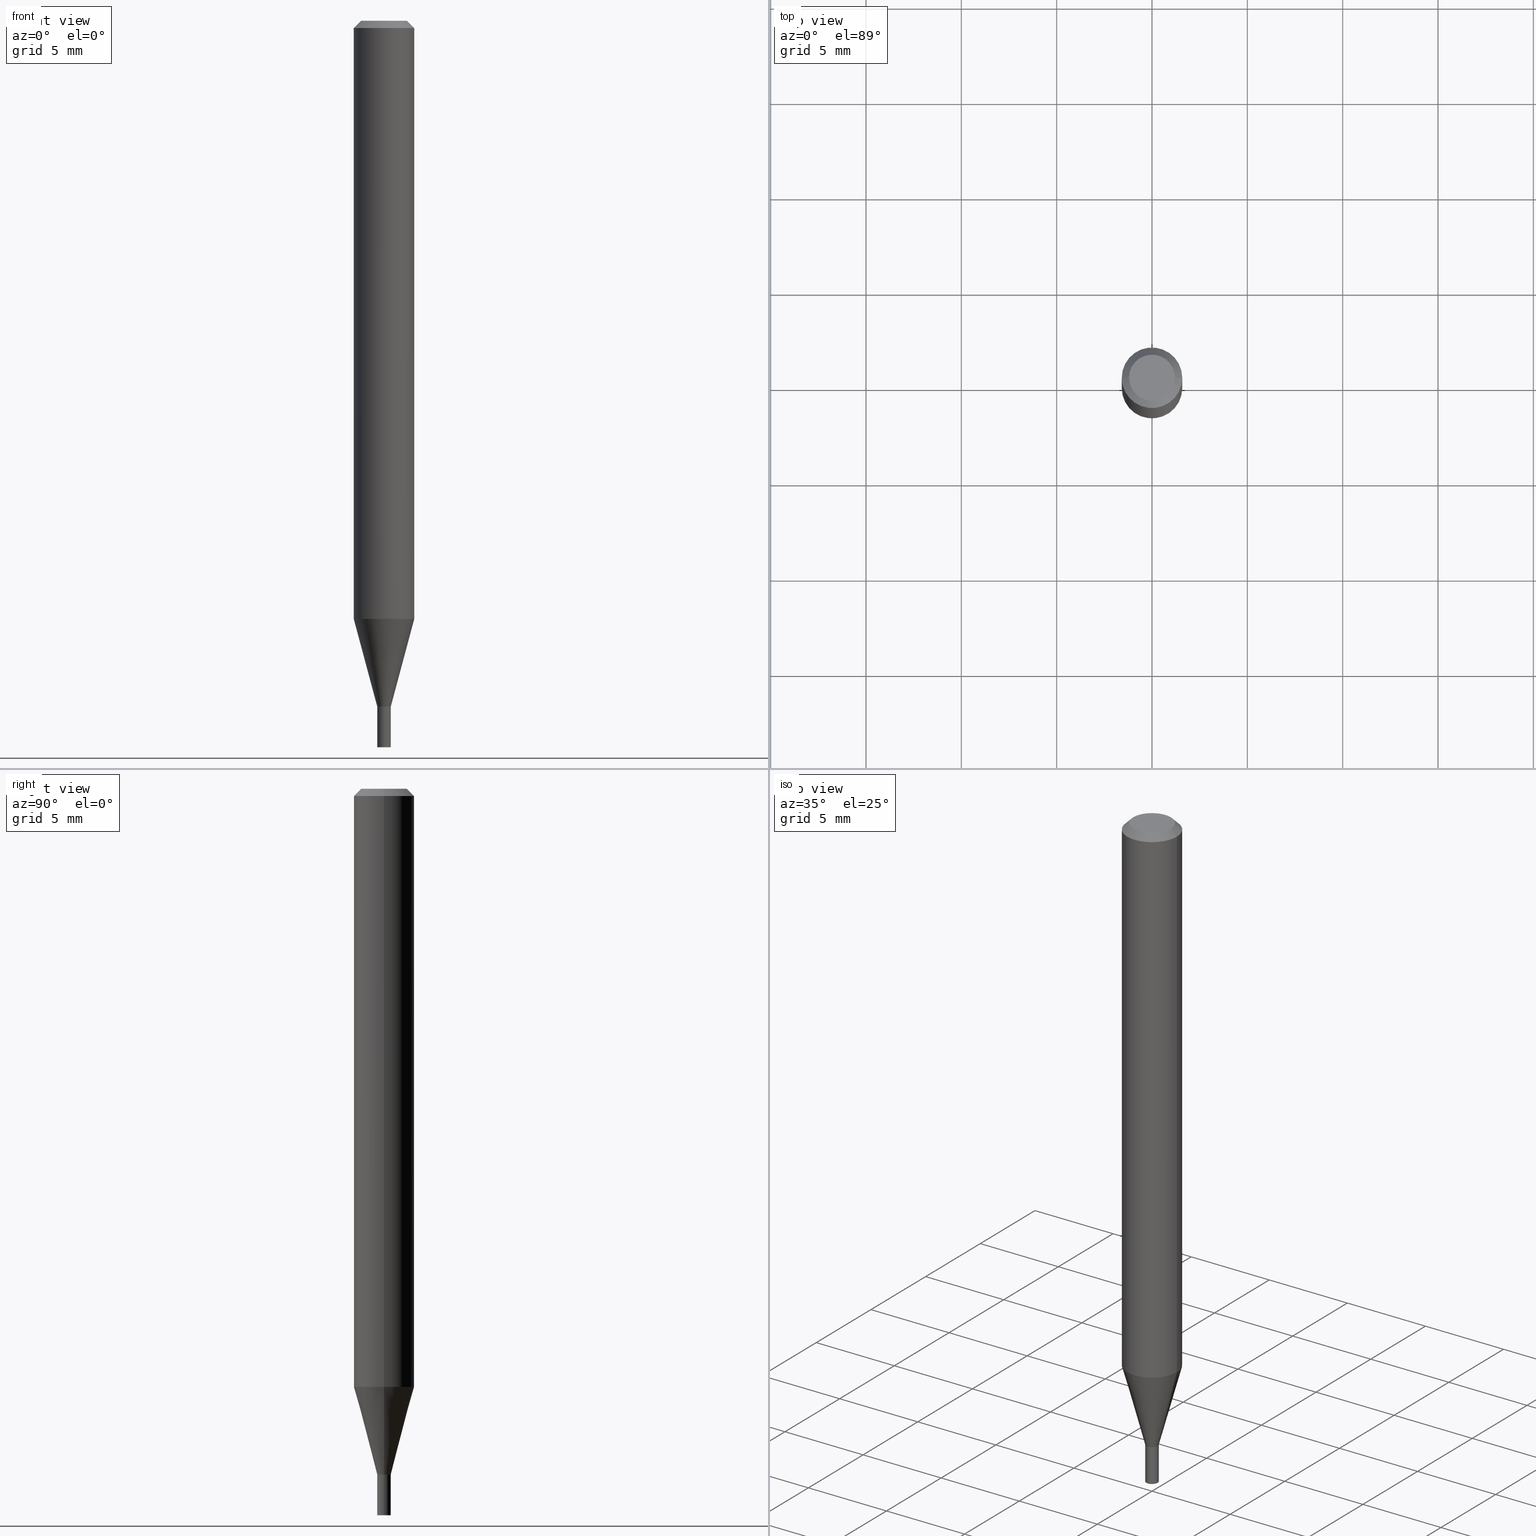
[diagram: canonical four-view strip — front | top / right | iso, engineering-drawing reading convention]
A machine part, canonical four-view strip (front | top / right | iso — engineering-drawing reading convention). The complete STEP part file that produces these views, byte-faithful:
ISO-10303-21;
HEADER;
FILE_DESCRIPTION (( 'STEP AP203' ),
    '1' );
FILE_NAME ('04134.STEP',
    '2024-03-14T17:04:21',
    ( '' ),
    ( '' ),
    'SwSTEP 2.0',
    'SolidWorks 2023',
    '' );
FILE_SCHEMA (( 'CONFIG_CONTROL_DESIGN' ));
ENDSEC;

DATA;
#1 = ORIENTED_EDGE ( 'NONE', *, *, #387, .T. ) ;
#2 = ORIENTED_EDGE ( 'NONE', *, *, #374, .T. ) ;
#3 = VERTEX_POINT ( 'NONE', #224 ) ;
#4 = LOCAL_TIME ( 13, 4, 21.00000000000000000, #462 ) ;
#5 = CALENDAR_DATE ( 2024, 14, 3 ) ;
#6 = ORIENTED_EDGE ( 'NONE', *, *, #285, .T. ) ;
#7 = CALENDAR_DATE ( 2024, 14, 3 ) ;
#8 = VERTEX_POINT ( 'NONE', #116 ) ;
#9 = CARTESIAN_POINT ( 'NONE',  ( 3.462783829558153484E-29, -4.943937575801893744E-15, -1.415999999999999925 ) ) ;
#10 = AXIS2_PLACEMENT_3D ( 'NONE', #459, #130, #163 ) ;
#11 = APPROVAL_PERSON_ORGANIZATION ( #352, #45, #276 ) ;
#12 = CARTESIAN_POINT ( 'NONE',  ( 0.000000000000000000, 0.000000000000000000, 0.000000000000000000 ) ) ;
#13 = EDGE_LOOP ( 'NONE', ( #422, #400, #143, #165 ) ) ;
#14 = CARTESIAN_POINT ( 'NONE',  ( -0.01399999999999965161, -4.842715852126062071E-15, -1.415500000000000203 ) ) ;
#15 = DIRECTION ( 'NONE',  ( -2.445468806185136597E-29, 3.491481338843145583E-15, 1.000000000000000000 ) ) ;
#16 = DIRECTION ( 'NONE',  ( 1.000000000000000000, -6.982962677686298265E-15, 0.000000000000000000 ) ) ;
#17 = AXIS2_PLACEMENT_3D ( 'NONE', #23, #203, #351 ) ;
#18 = CARTESIAN_POINT ( 'NONE',  ( 3.668203209277705088E-31, -5.237222008264718399E-17, -0.01499999999999999944 ) ) ;
#19 = VECTOR ( 'NONE', #91, 39.37007874015748143 ) ;
#20 = AXIS2_PLACEMENT_3D ( 'NONE', #417, #347, #450 ) ;
#21 = CARTESIAN_POINT ( 'NONE',  ( 3.668203209277705088E-31, -5.237222008264718399E-17, -0.01499999999999999944 ) ) ;
#22 = EDGE_CURVE ( 'NONE', #137, #153, #423, .T. ) ;
#23 = CARTESIAN_POINT ( 'NONE',  ( 3.462783829558153484E-29, -4.943937575801893744E-15, -1.415999999999999925 ) ) ;
#24 = ORIENTED_EDGE ( 'NONE', *, *, #26, .F. ) ;
#25 = DIRECTION ( 'NONE',  ( -0.2588190451025214611, 5.211531920934551042E-15, 0.9659258262890682012 ) ) ;
#26 = EDGE_CURVE ( 'NONE', #209, #8, #296, .T. ) ;
#27 = PRODUCT_DEFINITION_SHAPE ( 'NONE', 'NONE',  #438 ) ;
#28 = ORIENTED_EDGE ( 'NONE', *, *, #445, .F. ) ;
#29 = CARTESIAN_POINT ( 'NONE',  ( -0.04749999999999999362, 3.578768372314205575E-16, -2.863788329398987133E-16 ) ) ;
#30 = CARTESIAN_POINT ( 'NONE',  ( 0.000000000000000000, 0.000000000000000000, 0.000000000000000000 ) ) ;
#31 = DIRECTION ( 'NONE',  ( -2.445468806185136597E-29, 3.491481338843145583E-15, 1.000000000000000000 ) ) ;
#32 = AXIS2_PLACEMENT_3D ( 'NONE', #151, #253, #441 ) ;
#33 = DATE_AND_TIME ( #103, #377 ) ;
#34 =( GEOMETRIC_REPRESENTATION_CONTEXT ( 3 ) GLOBAL_UNCERTAINTY_ASSIGNED_CONTEXT ( ( #414 ) ) GLOBAL_UNIT_ASSIGNED_CONTEXT ( ( #95, #368, #278 ) ) REPRESENTATION_CONTEXT ( 'NONE', 'WORKASPACE' ) );
#35 = DIRECTION ( 'NONE',  ( 1.000000000000000000, -6.982962677686262766E-15, 0.000000000000000000 ) ) ;
#36 = DATE_AND_TIME ( #388, #183 ) ;
#37 = DIRECTION ( 'NONE',  ( 1.000000000000000000, -6.982962677686299054E-15, 0.000000000000000000 ) ) ;
#38 = EDGE_LOOP ( 'NONE', ( #393, #207, #84, #289 ) ) ;
#39 = APPLICATION_PROTOCOL_DEFINITION ( 'international standard', 'config_control_design', 1994, #275 ) ;
#40 = EDGE_LOOP ( 'NONE', ( #152, #216, #73, #323 ) ) ;
#41 = VECTOR ( 'NONE', #25, 39.37007874015747433 ) ;
#42 = FACE_OUTER_BOUND ( 'NONE', #345, .T. ) ;
#43 = EDGE_CURVE ( 'NONE', #251, #426, #161, .T. ) ;
#44 = VERTEX_POINT ( 'NONE', #440 ) ;
#45 = APPROVAL ( #49, 'UNSPECIFIED' ) ;
#46 = APPLICATION_CONTEXT ( 'configuration controlled 3d designs of mechanical parts and assemblies' ) ;
#47 = CARTESIAN_POINT ( 'NONE',  ( 0.000000000000000000, 0.000000000000000000, 0.000000000000000000 ) ) ;
#48 = ORIENTED_EDGE ( 'NONE', *, *, #265, .F. ) ;
#49 = APPROVAL_STATUS ( 'not_yet_approved' ) ;
#50 = ORIENTED_EDGE ( 'NONE', *, *, #394, .T. ) ;
#51 = CC_DESIGN_PERSON_AND_ORGANIZATION_ASSIGNMENT ( #166, #319, ( #438 ) ) ;
#52 = CARTESIAN_POINT ( 'NONE',  ( 0.01399999999999965335, -9.776147748760530919E-17, 6.826647486114140798E-31 ) ) ;
#53 = ADVANCED_FACE ( 'NONE', ( #54 ), #407, .T. ) ;
#54 = FACE_OUTER_BOUND ( 'NONE', #94, .T. ) ;
#55 = DIRECTION ( 'NONE',  ( 2.438088387897960049E-29, -3.491481338843145188E-15, -1.000000000000000000 ) ) ;
#56 = AXIS2_PLACEMENT_3D ( 'NONE', #159, #267, #232 ) ;
#57 = EDGE_CURVE ( 'NONE', #245, #426, #119, .T. ) ;
#58 = FACE_OUTER_BOUND ( 'NONE', #354, .T. ) ;
#59 = CARTESIAN_POINT ( 'NONE',  ( -0.06250000000000000000, -1.738078833648857034E-15, -0.01499999999999999944 ) ) ;
#60 = CARTESIAN_POINT ( 'NONE',  ( 0.06250000000000000000, -4.748399034270584284E-15, -1.234995535832908775 ) ) ;
#61 = FACE_OUTER_BOUND ( 'NONE', #174, .T. ) ;
#62 = LINE ( 'NONE', #378, #220 ) ;
#63 = VERTEX_POINT ( 'NONE', #373 ) ;
#64 = DIRECTION ( 'NONE',  ( -2.438088387897960049E-29, 3.491481338843145188E-15, 1.000000000000000000 ) ) ;
#65 = FACE_OUTER_BOUND ( 'NONE', #366, .T. ) ;
#66 = LINE ( 'NONE', #444, #262 ) ;
#67 = PERSON_AND_ORGANIZATION_ROLE ( 'creator' ) ;
#68 = DIRECTION ( 'NONE',  ( -1.000000000000000000, 6.982962677686266711E-15, 0.000000000000000000 ) ) ;
#69 = EDGE_CURVE ( 'NONE', #44, #8, #219, .T. ) ;
#70 = CONICAL_SURFACE ( 'NONE', #139, 0.01399999999999965335, 0.2617993877991501295 ) ;
#71 = APPROVAL_PERSON_ORGANIZATION ( #85, #316, #295 ) ;
#72 = DIRECTION ( 'NONE',  ( 0.2588190451025214611, 1.565188264969621573E-15, 0.9659258262890682012 ) ) ;
#73 = ORIENTED_EDGE ( 'NONE', *, *, #57, .T. ) ;
#74 = DATE_AND_TIME ( #7, #4 ) ;
#75 = LINE ( 'NONE', #210, #298 ) ;
#76 = ORIENTED_EDGE ( 'NONE', *, *, #451, .T. ) ;
#77 = CARTESIAN_POINT ( 'NONE',  ( -0.01350000000000000158, -4.848014306474279740E-15, -1.415999999999999925 ) ) ;
#78 = EDGE_CURVE ( 'NONE', #242, #44, #375, .T. ) ;
#79 = ORIENTED_EDGE ( 'NONE', *, *, #22, .F. ) ;
#80 = VECTOR ( 'NONE', #379, 39.37007874015748143 ) ;
#81 = LOCAL_TIME ( 13, 4, 21.00000000000000000, #282 ) ;
#82 = ORIENTED_EDGE ( 'NONE', *, *, #387, .F. ) ;
#83 = DIRECTION ( 'NONE',  ( 1.000000000000000000, 0.000000000000000000, 0.000000000000000000 ) ) ;
#84 = ORIENTED_EDGE ( 'NONE', *, *, #69, .F. ) ;
#85 = PERSON_AND_ORGANIZATION ( #206, #334 ) ;
#86 = DIRECTION ( 'NONE',  ( -2.445468806185136597E-29, 3.491481338843145583E-15, 1.000000000000000000 ) ) ;
#87 = CARTESIAN_POINT ( 'NONE',  ( 3.462783829558154044E-29, -4.943937575801894533E-15, -1.416000000000000147 ) ) ;
#88 = AXIS2_PLACEMENT_3D ( 'NONE', #442, #177, #300 ) ;
#89 = AXIS2_PLACEMENT_3D ( 'NONE', #199, #64, #448 ) ;
#90 = DIRECTION ( 'NONE',  ( -2.445468806185136597E-29, 3.491481338843145583E-15, 1.000000000000000000 ) ) ;
#91 = DIRECTION ( 'NONE',  ( -2.445468806185136877E-29, 3.491481338843145188E-15, 1.000000000000000000 ) ) ;
#92 = VERTEX_POINT ( 'NONE', #120 ) ;
#93 = VECTOR ( 'NONE', #360, 39.37007874015748143 ) ;
#94 = EDGE_LOOP ( 'NONE', ( #24, #308, #248, #185 ) ) ;
#95 =( CONVERSION_BASED_UNIT ( 'INCH', #121 ) LENGTH_UNIT ( ) NAMED_UNIT ( #315 ) );
#96 = DIRECTION ( 'NONE',  ( 0.7071067811865642261, -2.468850131082431399E-15, 0.7071067811865309194 ) ) ;
#97 = PLANE ( 'NONE',  #466 ) ;
#98 = AXIS2_PLACEMENT_3D ( 'NONE', #123, #266, #154 ) ;
#99 = CIRCLE ( 'NONE', #321, 0.06250000000000000000 ) ;
#100 = DIRECTION ( 'NONE',  ( -2.445468806185136877E-29, 3.491481338843145188E-15, 1.000000000000000000 ) ) ;
#101 = ORIENTED_EDGE ( 'NONE', *, *, #436, .F. ) ;
#102 = EDGE_LOOP ( 'NONE', ( #107, #397, #138, #101 ) ) ;
#103 = CALENDAR_DATE ( 2024, 14, 3 ) ;
#104 = ADVANCED_FACE ( 'NONE', ( #58 ), #222, .F. ) ;
#105 = CARTESIAN_POINT ( 'NONE',  ( -0.06250000000000000000, 4.440892098500626162E-16, -3.074334431409316114E-30 ) ) ;
#106 = CC_DESIGN_DATE_AND_TIME_ASSIGNMENT ( #201, #164, ( #398 ) ) ;
#107 = ORIENTED_EDGE ( 'NONE', *, *, #343, .F. ) ;
#108 = ORIENTED_EDGE ( 'NONE', *, *, #69, .T. ) ;
#109 = AXIS2_PLACEMENT_3D ( 'NONE', #184, #86, #369 ) ;
#110 = VERTEX_POINT ( 'NONE', #60 ) ;
#111 = PERSON_AND_ORGANIZATION_ROLE ( 'design_owner' ) ;
#112 = EDGE_CURVE ( 'NONE', #8, #44, #456, .T. ) ;
#113 = DIRECTION ( 'NONE',  ( 2.445468806185136597E-29, -3.491481338843145583E-15, -1.000000000000000000 ) ) ;
#114 = ORIENTED_EDGE ( 'NONE', *, *, #357, .T. ) ;
#115 = CIRCLE ( 'NONE', #376, 0.01399999999999965161 ) ;
#116 = CARTESIAN_POINT ( 'NONE',  ( -0.01400000000000000203, -4.991103809026892241E-15, -1.416000000000000147 ) ) ;
#117 = ADVANCED_FACE ( 'NONE', ( #189 ), #304, .T. ) ;
#118 = EDGE_CURVE ( 'NONE', #153, #137, #415, .T. ) ;
#119 = LINE ( 'NONE', #52, #257 ) ;
#120 = CARTESIAN_POINT ( 'NONE',  ( -0.01399999999999965335, -4.356168124930306786E-15, -1.416000000000000147 ) ) ;
#121 = LENGTH_MEASURE_WITH_UNIT ( LENGTH_MEASURE( 0.02539999999999999897 ), #457 );
#122 = FACE_OUTER_BOUND ( 'NONE', #40, .T. ) ;
#123 = CARTESIAN_POINT ( 'NONE',  ( 9.776147748764236100E-17, 0.01399999999999505806, -1.416000000000000147 ) ) ;
#124 = PLANE ( 'NONE',  #89 ) ;
#125 = PRODUCT ( '04134', '04134', '', ( #135 ) ) ;
#126 = CARTESIAN_POINT ( 'NONE',  ( 3.462783829558153484E-29, -4.943937575801893744E-15, -1.415999999999999925 ) ) ;
#127 = CONICAL_SURFACE ( 'NONE', #149, 0.06250000000000000000, 0.7853981633974579379 ) ;
#128 = CC_DESIGN_APPROVAL ( #45, ( #370 ) ) ;
#129 = DIRECTION ( 'NONE',  ( -2.445468806185136597E-29, 3.491481338843145583E-15, 1.000000000000000000 ) ) ;
#130 = DIRECTION ( 'NONE',  ( -2.445468806185136597E-29, 3.491481338843145583E-15, 1.000000000000000000 ) ) ;
#131 = CARTESIAN_POINT ( 'NONE',  ( 0.000000000000000000, 0.000000000000000000, 0.000000000000000000 ) ) ;
#132 = APPROVAL_DATE_TIME ( #36, #401 ) ;
#133 = AXIS2_PLACEMENT_3D ( 'NONE', #47, #208, #324 ) ;
#134 = ORIENTED_EDGE ( 'NONE', *, *, #118, .T. ) ;
#135 = MECHANICAL_CONTEXT ( 'NONE', #46, 'mechanical' ) ;
#136 = ORIENTED_EDGE ( 'NONE', *, *, #367, .T. ) ;
#137 = VERTEX_POINT ( 'NONE', #260 ) ;
#138 = ORIENTED_EDGE ( 'NONE', *, *, #213, .T. ) ;
#139 = AXIS2_PLACEMENT_3D ( 'NONE', #237, #386, #311 ) ;
#140 = VECTOR ( 'NONE', #100, 39.37007874015748143 ) ;
#141 = ADVANCED_FACE ( 'NONE', ( #294 ), #127, .T. ) ;
#142 = COORDINATED_UNIVERSAL_TIME_OFFSET ( 5, 0, .BEHIND. ) ;
#143 = ORIENTED_EDGE ( 'NONE', *, *, #425, .F. ) ;
#144 = DATE_TIME_ROLE ( 'creation_date' ) ;
#145 = DIRECTION ( 'NONE',  ( 1.000000000000000000, -6.982962677686296687E-15, 0.000000000000000000 ) ) ;
#146 = ADVANCED_FACE ( 'NONE', ( #122 ), #449, .F. ) ;
#147 = ADVANCED_FACE ( 'NONE', ( #65 ), #340, .T. ) ;
#148 = CARTESIAN_POINT ( 'NONE',  ( -0.01400000000000000203, 9.947598300641404042E-17, -6.886509126356868606E-31 ) ) ;
#149 = AXIS2_PLACEMENT_3D ( 'NONE', #435, #113, #68 ) ;
#150 = AXIS2_PLACEMENT_3D ( 'NONE', #346, #129, #16 ) ;
#151 = CARTESIAN_POINT ( 'NONE',  ( 3.462783829558154044E-29, -4.943937575801894533E-15, -1.416000000000000147 ) ) ;
#152 = ORIENTED_EDGE ( 'NONE', *, *, #367, .F. ) ;
#153 = VERTEX_POINT ( 'NONE', #198 ) ;
#154 = DIRECTION ( 'NONE',  ( -1.000000000000000000, 6.982962677686265922E-15, -4.876176775795935793E-29 ) ) ;
#155 = DIRECTION ( 'NONE',  ( -2.445468806185136597E-29, 3.491481338843145583E-15, 1.000000000000000000 ) ) ;
#156 = DIRECTION ( 'NONE',  ( 1.000000000000000000, -6.982962677686262766E-15, 0.000000000000000000 ) ) ;
#157 = CC_DESIGN_SECURITY_CLASSIFICATION ( #398, ( #370 ) ) ;
#158 = CARTESIAN_POINT ( 'NONE',  ( 3.020143058657276543E-29, -4.311963866915191826E-15, -1.234995535832908775 ) ) ;
#159 = CARTESIAN_POINT ( 'NONE',  ( 0.000000000000000000, 0.000000000000000000, 0.000000000000000000 ) ) ;
#160 = CARTESIAN_POINT ( 'NONE',  ( -0.01399999999999965335, 9.947598300641156290E-17, -6.886509126356697823E-31 ) ) ;
#161 = CIRCLE ( 'NONE', #88, 0.01399999999999965161 ) ;
#162 = VECTOR ( 'NONE', #341, 39.37007874015748143 ) ;
#163 = DIRECTION ( 'NONE',  ( 1.000000000000000000, -6.982962677686266711E-15, 4.876176775795935793E-29 ) ) ;
#164 = DATE_TIME_ROLE ( 'classification_date' ) ;
#165 = ORIENTED_EDGE ( 'NONE', *, *, #394, .F. ) ;
#166 = PERSON_AND_ORGANIZATION ( #206, #334 ) ;
#167 = AXIS2_PLACEMENT_3D ( 'NONE', #30, #458, #365 ) ;
#168 = AXIS2_PLACEMENT_3D ( 'NONE', #225, #233, #268 ) ;
#169 = ORIENTED_EDGE ( 'NONE', *, *, #277, .T. ) ;
#170 = DIRECTION ( 'NONE',  ( -0.7071067811865542341, 2.468850131082328058E-15, -0.7071067811865405783 ) ) ;
#171 = ORIENTED_EDGE ( 'NONE', *, *, #264, .F. ) ;
#172 = ORIENTED_EDGE ( 'NONE', *, *, #343, .T. ) ;
#173 = PERSON_AND_ORGANIZATION_ROLE ( 'design_supplier' ) ;
#174 = EDGE_LOOP ( 'NONE', ( #48, #28 ) ) ;
#175 = AXIS2_PLACEMENT_3D ( 'NONE', #336, #372, #403 ) ;
#176 = CIRCLE ( 'NONE', #432, 0.06250000000000000000 ) ;
#177 = DIRECTION ( 'NONE',  ( -2.445468806185136597E-29, 3.491481338843145583E-15, 1.000000000000000000 ) ) ;
#178 = ADVANCED_FACE ( 'NONE', ( #200 ), #182, .T. ) ;
#179 = EDGE_CURVE ( 'NONE', #433, #63, #202, .T. ) ;
#180 = CARTESIAN_POINT ( 'NONE',  ( 0.01400000000000000203, -9.776147748760774973E-17, 6.826647486114310706E-31 ) ) ;
#181 = DIRECTION ( 'NONE',  ( -2.445468806185136597E-29, 3.491481338843145583E-15, 1.000000000000000000 ) ) ;
#182 = CONICAL_SURFACE ( 'NONE', #226, 0.06250000000000000000, 0.7853981633974579379 ) ;
#183 = LOCAL_TIME ( 13, 4, 21.00000000000000000, #402 ) ;
#184 = CARTESIAN_POINT ( 'NONE',  ( 3.020143058657276543E-29, -4.311963866915191826E-15, -1.234995535832908775 ) ) ;
#185 = ORIENTED_EDGE ( 'NONE', *, *, #112, .F. ) ;
#186 = DIRECTION ( 'NONE',  ( -2.445468806185136597E-29, 3.491481338843145583E-15, 1.000000000000000000 ) ) ;
#187 = LINE ( 'NONE', #105, #361 ) ;
#188 = DESIGN_CONTEXT ( 'detailed design', #275, 'design' ) ;
#189 = FACE_OUTER_BOUND ( 'NONE', #409, .T. ) ;
#190 = ADVANCED_FACE ( 'NONE', ( #455 ), #272, .F. ) ;
#191 = DIRECTION ( 'NONE',  ( 0.7071067811865542341, -7.319954787623278133E-15, -0.7071067811865405783 ) ) ;
#192 = CIRCLE ( 'NONE', #32, 0.01399999999999965335 ) ;
#193 = APPROVAL_PERSON_ORGANIZATION ( #293, #401, #239 ) ;
#194 = DIRECTION ( 'NONE',  ( -1.000000000000000000, 6.982962677686266711E-15, 0.000000000000000000 ) ) ;
#195 = ORIENTED_EDGE ( 'NONE', *, *, #22, .T. ) ;
#196 = DIRECTION ( 'NONE',  ( -2.438088387897960049E-29, 3.491481338843145188E-15, 1.000000000000000000 ) ) ;
#197 = ADVANCED_FACE ( 'NONE', ( #389 ), #290, .T. ) ;
#198 = CARTESIAN_POINT ( 'NONE',  ( -0.01350000000000000158, -4.845365079300170905E-15, -1.415999999999999925 ) ) ;
#199 = CARTESIAN_POINT ( 'NONE',  ( 3.576687321579069994E-29, -5.368277968210015545E-15, -1.500000000000000222 ) ) ;
#200 = FACE_OUTER_BOUND ( 'NONE', #429, .T. ) ;
#201 = DATE_AND_TIME ( #5, #305 ) ;
#202 = CIRCLE ( 'NONE', #313, 0.06250000000000000000 ) ;
#203 = DIRECTION ( 'NONE',  ( -2.445468806185136597E-29, 3.491481338843145583E-15, 1.000000000000000000 ) ) ;
#204 = APPROVAL_STATUS ( 'not_yet_approved' ) ;
#205 = CARTESIAN_POINT ( 'NONE',  ( 3.461561095155061243E-29, -4.942191835132473030E-15, -1.415500000000000203 ) ) ;
#206 = PERSON ( 'UNSPECIFIED', 'UNSPECIFIED', 'UNSPECIFIED', ('UNSPECIFIED'), ('UNSPECIFIED'), ('UNSPECIFIED') ) ;
#207 = ORIENTED_EDGE ( 'NONE', *, *, #26, .T. ) ;
#208 = DIRECTION ( 'NONE',  ( -2.445468806185136597E-29, 3.491481338843145583E-15, 1.000000000000000000 ) ) ;
#209 = VERTEX_POINT ( 'NONE', #241 ) ;
#210 = CARTESIAN_POINT ( 'NONE',  ( -0.06250000000000000000, 3.840629472727444916E-16, -0.01499999999999999944 ) ) ;
#211 = AXIS2_PLACEMENT_3D ( 'NONE', #355, #349, #83 ) ;
#212 = ORIENTED_EDGE ( 'NONE', *, *, #451, .F. ) ;
#213 = EDGE_CURVE ( 'NONE', #245, #110, #392, .T. ) ;
#214 = ORIENTED_EDGE ( 'NONE', *, *, #43, .T. ) ;
#215 = PERSON_AND_ORGANIZATION ( #206, #334 ) ;
#216 = ORIENTED_EDGE ( 'NONE', *, *, #357, .F. ) ;
#217 = SHAPE_DEFINITION_REPRESENTATION ( #27, #404 ) ;
#218 = EDGE_LOOP ( 'NONE', ( #171, #318, #50, #328 ) ) ;
#219 = CIRCLE ( 'NONE', #431, 0.01400000000000000203 ) ;
#220 = VECTOR ( 'NONE', #96, 39.37007874015748143 ) ;
#221 = EDGE_CURVE ( 'NONE', #426, #251, #115, .T. ) ;
#222 = PLANE ( 'NONE',  #247 ) ;
#223 = CARTESIAN_POINT ( 'NONE',  ( 3.316907271900976096E-16, 0.04749999999999999362, -3.090347800649974958E-16 ) ) ;
#224 = CARTESIAN_POINT ( 'NONE',  ( -0.06250000000000000000, -3.867874657065129999E-15, -1.234995535832908775 ) ) ;
#225 = CARTESIAN_POINT ( 'NONE',  ( 3.462783829558154044E-29, -4.943937575801894533E-15, -1.416000000000000147 ) ) ;
#226 = AXIS2_PLACEMENT_3D ( 'NONE', #18, #383, #194 ) ;
#227 = EDGE_CURVE ( 'NONE', #92, #245, #192, .T. ) ;
#228 = DIRECTION ( 'NONE',  ( 1.000000000000000000, -6.982962677686296687E-15, 0.000000000000000000 ) ) ;
#229 = DIRECTION ( 'NONE',  ( -2.445468806185136597E-29, 3.491481338843145583E-15, 1.000000000000000000 ) ) ;
#230 = CC_DESIGN_DATE_AND_TIME_ASSIGNMENT ( #427, #144, ( #438 ) ) ;
#231 = DIRECTION ( 'NONE',  ( 1.000000000000000000, -6.982962677686262766E-15, 0.000000000000000000 ) ) ;
#232 = DIRECTION ( 'NONE',  ( 1.000000000000000000, -6.982962677686266711E-15, 4.876176775795935793E-29 ) ) ;
#233 = DIRECTION ( 'NONE',  ( -2.445468806185136597E-29, 3.491481338843145583E-15, 1.000000000000000000 ) ) ;
#234 = EDGE_CURVE ( 'NONE', #110, #3, #291, .T. ) ;
#235 = AXIS2_PLACEMENT_3D ( 'NONE', #302, #443, #145 ) ;
#236 = CIRCLE ( 'NONE', #168, 0.01399999999999965335 ) ;
#237 = CARTESIAN_POINT ( 'NONE',  ( 3.462783829558154044E-29, -4.943937575801894533E-15, -1.416000000000000147 ) ) ;
#238 = LINE ( 'NONE', #420, #41 ) ;
#239 = APPROVAL_ROLE ( '' ) ;
#240 = DIRECTION ( 'NONE',  ( 1.000000000000000000, -6.982962677686266711E-15, 4.876176775795935793E-29 ) ) ;
#241 = CARTESIAN_POINT ( 'NONE',  ( -0.01400000000000000203, -4.991103809026892241E-15, -1.500000000000000222 ) ) ;
#242 = VERTEX_POINT ( 'NONE', #255 ) ;
#243 = PERSON_AND_ORGANIZATION ( #206, #334 ) ;
#244 = EDGE_LOOP ( 'NONE', ( #395, #136, #214, #332 ) ) ;
#245 = VERTEX_POINT ( 'NONE', #350 ) ;
#246 = ADVANCED_FACE ( 'NONE', ( #381 ), #312, .T. ) ;
#247 = AXIS2_PLACEMENT_3D ( 'NONE', #223, #55, #437 ) ;
#248 = ORIENTED_EDGE ( 'NONE', *, *, #78, .T. ) ;
#249 = CC_DESIGN_PERSON_AND_ORGANIZATION_ASSIGNMENT ( #364, #173, ( #370 ) ) ;
#250 = COORDINATED_UNIVERSAL_TIME_OFFSET ( 5, 0, .BEHIND. ) ;
#251 = VERTEX_POINT ( 'NONE', #14 ) ;
#252 = CALENDAR_DATE ( 2024, 14, 3 ) ;
#253 = DIRECTION ( 'NONE',  ( -2.445468806185136597E-29, 3.491481338843145583E-15, 1.000000000000000000 ) ) ;
#254 = DIRECTION ( 'NONE',  ( 1.000000000000000000, -6.982962677686266711E-15, 4.876176775795935232E-29 ) ) ;
#255 = CARTESIAN_POINT ( 'NONE',  ( 0.01400000000000000203, -5.334983485752326321E-15, -1.500000000000000222 ) ) ;
#256 = ORIENTED_EDGE ( 'NONE', *, *, #213, .F. ) ;
#257 = VECTOR ( 'NONE', #408, 39.37007874015748143 ) ;
#258 = DIRECTION ( 'NONE',  ( -2.445468806185136597E-29, 3.491481338843145583E-15, 1.000000000000000000 ) ) ;
#259 = ORIENTED_EDGE ( 'NONE', *, *, #452, .F. ) ;
#260 = CARTESIAN_POINT ( 'NONE',  ( 0.01350000000000000158, -5.038207571950658881E-15, -1.415999999999999925 ) ) ;
#261 = PLANE ( 'NONE',  #98 ) ;
#262 = VECTOR ( 'NONE', #191, 39.37007874015748854 ) ;
#263 = FACE_OUTER_BOUND ( 'NONE', #284, .T. ) ;
#264 = EDGE_CURVE ( 'NONE', #3, #433, #187, .T. ) ;
#265 = EDGE_CURVE ( 'NONE', #242, #209, #279, .T. ) ;
#266 = DIRECTION ( 'NONE',  ( 2.438088387897960049E-29, -3.491481338843145188E-15, -1.000000000000000000 ) ) ;
#267 = DIRECTION ( 'NONE',  ( -2.445468806185136597E-29, 3.491481338843145583E-15, 1.000000000000000000 ) ) ;
#268 = DIRECTION ( 'NONE',  ( 1.000000000000000000, -6.982962677686298265E-15, 0.000000000000000000 ) ) ;
#269 = CYLINDRICAL_SURFACE ( 'NONE', #167, 0.06250000000000000000 ) ;
#270 = AXIS2_PLACEMENT_3D ( 'NONE', #9, #15, #371 ) ;
#271 = CIRCLE ( 'NONE', #299, 0.04749999999999999362 ) ;
#272 = CYLINDRICAL_SURFACE ( 'NONE', #439, 0.01399999999999965335 ) ;
#273 = LINE ( 'NONE', #385, #140 ) ;
#274 = DIRECTION ( 'NONE',  ( -2.445468806185136597E-29, 3.491481338843145583E-15, 1.000000000000000000 ) ) ;
#275 = APPLICATION_CONTEXT ( 'configuration controlled 3d designs of mechanical parts and assemblies' ) ;
#276 = APPROVAL_ROLE ( '' ) ;
#277 = EDGE_CURVE ( 'NONE', #464, #433, #75, .T. ) ;
#278 =( NAMED_UNIT ( * ) SI_UNIT ( $, .STERADIAN. ) SOLID_ANGLE_UNIT ( ) );
#279 = CIRCLE ( 'NONE', #446, 0.01400000000000000203 ) ;
#280 = CONICAL_SURFACE ( 'NONE', #150, 0.01399999999999965335, 0.2617993877991501295 ) ;
#281 = ORIENTED_EDGE ( 'NONE', *, *, #277, .F. ) ;
#282 = COORDINATED_UNIVERSAL_TIME_OFFSET ( 5, 0, .BEHIND. ) ;
#283 = MANIFOLD_SOLID_BREP ( 'Body-Move/Copy2[1]', #410 ) ;
#284 = EDGE_LOOP ( 'NONE', ( #79, #416 ) ) ;
#285 = EDGE_CURVE ( 'NONE', #153, #251, #396, .T. ) ;
#286 = ADVANCED_FACE ( 'NONE', ( #42 ), #70, .T. ) ;
#287 = MANIFOLD_SOLID_BREP ( 'Body-Move/Copy2[2]', #320 ) ;
#288 = CC_DESIGN_PERSON_AND_ORGANIZATION_ASSIGNMENT ( #326, #461, ( #398 ) ) ;
#289 = ORIENTED_EDGE ( 'NONE', *, *, #78, .F. ) ;
#290 = CYLINDRICAL_SURFACE ( 'NONE', #133, 0.01400000000000000203 ) ;
#291 = CIRCLE ( 'NONE', #109, 0.06250000000000000000 ) ;
#292 = EDGE_LOOP ( 'NONE', ( #82, #212, #169, #297 ) ) ;
#293 = PERSON_AND_ORGANIZATION ( #206, #334 ) ;
#294 = FACE_OUTER_BOUND ( 'NONE', #292, .T. ) ;
#295 = APPROVAL_ROLE ( '' ) ;
#296 = LINE ( 'NONE', #148, #80 ) ;
#297 = ORIENTED_EDGE ( 'NONE', *, *, #179, .T. ) ;
#298 = VECTOR ( 'NONE', #170, 39.37007874015748854 ) ;
#299 = AXIS2_PLACEMENT_3D ( 'NONE', #384, #306, #380 ) ;
#300 = DIRECTION ( 'NONE',  ( 1.000000000000000000, -6.982962677686299054E-15, 0.000000000000000000 ) ) ;
#301 = ADVANCED_FACE ( 'NONE', ( #348 ), #269, .T. ) ;
#302 = CARTESIAN_POINT ( 'NONE',  ( 3.462783829558153484E-29, -4.943937575801893744E-15, -1.415999999999999925 ) ) ;
#303 = CARTESIAN_POINT ( 'NONE',  ( 0.01399999999999965161, -5.039953312620078807E-15, -1.415500000000000203 ) ) ;
#304 = CONICAL_SURFACE ( 'NONE', #333, 0.01350000000000000158, 0.7853981633974718157 ) ;
#305 = LOCAL_TIME ( 13, 4, 21.00000000000000000, #142 ) ;
#306 = DIRECTION ( 'NONE',  ( -2.445468806185136597E-29, 3.491481338843145583E-15, 1.000000000000000000 ) ) ;
#307 = ADVANCED_FACE ( 'NONE', ( #263 ), #97, .F. ) ;
#308 = ORIENTED_EDGE ( 'NONE', *, *, #445, .T. ) ;
#309 = DIRECTION ( 'NONE',  ( 1.000000000000000000, -6.982962677686266711E-15, 0.000000000000000000 ) ) ;
#310 = LINE ( 'NONE', #160, #162 ) ;
#311 = DIRECTION ( 'NONE',  ( 1.000000000000000000, -6.982962677686298265E-15, 0.000000000000000000 ) ) ;
#312 = CYLINDRICAL_SURFACE ( 'NONE', #10, 0.06250000000000000000 ) ;
#313 = AXIS2_PLACEMENT_3D ( 'NONE', #344, #31, #314 ) ;
#314 = DIRECTION ( 'NONE',  ( 1.000000000000000000, -6.982962677686266711E-15, 0.000000000000000000 ) ) ;
#315 = DIMENSIONAL_EXPONENTS ( 1.000000000000000000, 0.000000000000000000, 0.000000000000000000, 0.000000000000000000, 0.000000000000000000, 0.000000000000000000, 0.000000000000000000 ) ;
#316 = APPROVAL ( #204, 'UNSPECIFIED' ) ;
#317 = SECURITY_CLASSIFICATION_LEVEL ( 'unclassified' ) ;
#318 = ORIENTED_EDGE ( 'NONE', *, *, #436, .T. ) ;
#319 = PERSON_AND_ORGANIZATION_ROLE ( 'creator' ) ;
#320 = CLOSED_SHELL ( 'NONE', ( #190, #117, #178, #246, #286, #419, #301, #141, #104, #307, #147, #146 ) ) ;
#321 = AXIS2_PLACEMENT_3D ( 'NONE', #158, #413, #156 ) ;
#322 = ORIENTED_EDGE ( 'NONE', *, *, #452, .T. ) ;
#323 = ORIENTED_EDGE ( 'NONE', *, *, #221, .T. ) ;
#324 = DIRECTION ( 'NONE',  ( 1.000000000000000000, -6.982962677686266711E-15, 4.876176775795935232E-29 ) ) ;
#325 = ORIENTED_EDGE ( 'NONE', *, *, #234, .F. ) ;
#326 = PERSON_AND_ORGANIZATION ( #206, #334 ) ;
#327 = CC_DESIGN_APPROVAL ( #401, ( #398 ) ) ;
#328 = ORIENTED_EDGE ( 'NONE', *, *, #179, .F. ) ;
#329 = APPROVAL_DATE_TIME ( #33, #45 ) ;
#330 = DIRECTION ( 'NONE',  ( 1.000000000000000000, -6.982962677686262766E-15, 0.000000000000000000 ) ) ;
#331 = CARTESIAN_POINT ( 'NONE',  ( 3.462783829558153484E-29, -4.943937575801893744E-15, -1.415999999999999925 ) ) ;
#332 = ORIENTED_EDGE ( 'NONE', *, *, #57, .F. ) ;
#333 = AXIS2_PLACEMENT_3D ( 'NONE', #331, #181, #228 ) ;
#334 = ORGANIZATION ( 'UNSPECIFIED', 'UNSPECIFIED', '' ) ;
#335 = PRODUCT_RELATED_PRODUCT_CATEGORY ( 'detail', '', ( #125 ) ) ;
#336 = CARTESIAN_POINT ( 'NONE',  ( 3.462783829558154044E-29, -4.943937575801894533E-15, -1.416000000000000147 ) ) ;
#337 = DIRECTION ( 'NONE',  ( -2.445468806185136877E-29, 3.491481338843145188E-15, 1.000000000000000000 ) ) ;
#338 = ORIENTED_EDGE ( 'NONE', *, *, #221, .F. ) ;
#339 = FACE_OUTER_BOUND ( 'NONE', #399, .T. ) ;
#340 = CONICAL_SURFACE ( 'NONE', #17, 0.01350000000000000158, 0.7853981633974718157 ) ;
#341 = DIRECTION ( 'NONE',  ( -2.445468806185136877E-29, 3.491481338843145188E-15, 1.000000000000000000 ) ) ;
#342 = CIRCLE ( 'NONE', #418, 0.01400000000000000203 ) ;
#343 = EDGE_CURVE ( 'NONE', #92, #3, #238, .T. ) ;
#344 = CARTESIAN_POINT ( 'NONE',  ( 3.668203209277705088E-31, -5.237222008264718399E-17, -0.01499999999999999944 ) ) ;
#345 = EDGE_LOOP ( 'NONE', ( #114, #172, #325, #256 ) ) ;
#346 = CARTESIAN_POINT ( 'NONE',  ( 3.462783829558154044E-29, -4.943937575801894533E-15, -1.416000000000000147 ) ) ;
#347 = DIRECTION ( 'NONE',  ( -2.445468806185136597E-29, 3.491481338843145583E-15, 1.000000000000000000 ) ) ;
#348 = FACE_OUTER_BOUND ( 'NONE', #218, .T. ) ;
#349 = DIRECTION ( 'NONE',  ( 0.000000000000000000, 0.000000000000000000, 1.000000000000000000 ) ) ;
#350 = CARTESIAN_POINT ( 'NONE',  ( 0.01399999999999965335, -5.041699053289500311E-15, -1.416000000000000147 ) ) ;
#351 = DIRECTION ( 'NONE',  ( 1.000000000000000000, -6.982962677686296687E-15, 0.000000000000000000 ) ) ;
#352 = PERSON_AND_ORGANIZATION ( #206, #334 ) ;
#353 = DIRECTION ( 'NONE',  ( -2.445468806185136597E-29, 3.491481338843145583E-15, 1.000000000000000000 ) ) ;
#354 = EDGE_LOOP ( 'NONE', ( #76, #322 ) ) ;
#355 = CARTESIAN_POINT ( 'NONE',  ( 0.000000000000000000, 0.000000000000000000, 0.000000000000000000 ) ) ;
#356 = ADVANCED_FACE ( 'NONE', ( #339 ), #261, .F. ) ;
#357 = EDGE_CURVE ( 'NONE', #245, #92, #236, .T. ) ;
#358 = CARTESIAN_POINT ( 'NONE',  ( 0.01399999999999965335, -5.041699053289500311E-15, -1.416000000000000147 ) ) ;
#359 = ORIENTED_EDGE ( 'NONE', *, *, #285, .F. ) ;
#360 = DIRECTION ( 'NONE',  ( -0.7071067811865642261, 7.493145998870414114E-15, 0.7071067811865309194 ) ) ;
#361 = VECTOR ( 'NONE', #337, 39.37007874015748143 ) ;
#362 = VERTEX_POINT ( 'NONE', #412 ) ;
#363 = ORIENTED_EDGE ( 'NONE', *, *, #425, .T. ) ;
#364 = PERSON_AND_ORGANIZATION ( #206, #334 ) ;
#365 = DIRECTION ( 'NONE',  ( 1.000000000000000000, -6.982962677686266711E-15, 4.876176775795935793E-29 ) ) ;
#366 = EDGE_LOOP ( 'NONE', ( #359, #134, #2, #406 ) ) ;
#367 = EDGE_CURVE ( 'NONE', #92, #251, #310, .T. ) ;
#368 =( NAMED_UNIT ( * ) PLANE_ANGLE_UNIT ( ) SI_UNIT ( $, .RADIAN. ) );
#369 = DIRECTION ( 'NONE',  ( 1.000000000000000000, -6.982962677686262766E-15, 0.000000000000000000 ) ) ;
#370 = PRODUCT_DEFINITION_FORMATION_WITH_SPECIFIED_SOURCE ( 'ANY', '', #125, .NOT_KNOWN. ) ;
#371 = DIRECTION ( 'NONE',  ( 1.000000000000000000, -6.982962677686296687E-15, 0.000000000000000000 ) ) ;
#372 = DIRECTION ( 'NONE',  ( -2.445468806185136597E-29, 3.491481338843145583E-15, 1.000000000000000000 ) ) ;
#373 = CARTESIAN_POINT ( 'NONE',  ( 0.06250000000000000000, -4.888073874380388472E-16, -0.01499999999999999944 ) ) ;
#374 = EDGE_CURVE ( 'NONE', #137, #426, #62, .T. ) ;
#375 = LINE ( 'NONE', #180, #19 ) ;
#376 = AXIS2_PLACEMENT_3D ( 'NONE', #205, #353, #37 ) ;
#377 = LOCAL_TIME ( 13, 4, 21.00000000000000000, #250 ) ;
#378 = CARTESIAN_POINT ( 'NONE',  ( 0.01350000000000000158, -5.038207571950658881E-15, -1.415999999999999925 ) ) ;
#379 = DIRECTION ( 'NONE',  ( -2.445468806185136877E-29, 3.491481338843145188E-15, 1.000000000000000000 ) ) ;
#380 = DIRECTION ( 'NONE',  ( 1.000000000000000000, -6.982962677686267499E-15, 4.852736867747366768E-29 ) ) ;
#381 = FACE_OUTER_BOUND ( 'NONE', #13, .T. ) ;
#382 = FACE_OUTER_BOUND ( 'NONE', #102, .T. ) ;
#383 = DIRECTION ( 'NONE',  ( 2.445468806185136597E-29, -3.491481338843145583E-15, -1.000000000000000000 ) ) ;
#384 = CARTESIAN_POINT ( 'NONE',  ( 7.003305027062207074E-45, -9.998863510493265527E-31, -2.863788329398962481E-16 ) ) ;
#385 = CARTESIAN_POINT ( 'NONE',  ( 0.06250000000000000000, -4.364351673553916694E-16, 3.047610484872459871E-30 ) ) ;
#386 = DIRECTION ( 'NONE',  ( -2.445468806185136597E-29, 3.491481338843145583E-15, 1.000000000000000000 ) ) ;
#387 = EDGE_CURVE ( 'NONE', #362, #63, #66, .T. ) ;
#388 = CALENDAR_DATE ( 2024, 14, 3 ) ;
#389 = FACE_OUTER_BOUND ( 'NONE', #38, .T. ) ;
#390 = APPLICATION_PROTOCOL_DEFINITION ( 'international standard', 'config_control_design', 1994, #46 ) ;
#391 = AXIS2_PLACEMENT_3D ( 'NONE', #12, #90, #254 ) ;
#392 = LINE ( 'NONE', #358, #405 ) ;
#393 = ORIENTED_EDGE ( 'NONE', *, *, #265, .T. ) ;
#394 = EDGE_CURVE ( 'NONE', #110, #63, #273, .T. ) ;
#395 = ORIENTED_EDGE ( 'NONE', *, *, #227, .F. ) ;
#396 = LINE ( 'NONE', #77, #93 ) ;
#397 = ORIENTED_EDGE ( 'NONE', *, *, #227, .T. ) ;
#398 = SECURITY_CLASSIFICATION ( '', '', #317 ) ;
#399 = EDGE_LOOP ( 'NONE', ( #108, #460 ) ) ;
#400 = ORIENTED_EDGE ( 'NONE', *, *, #264, .T. ) ;
#401 = APPROVAL ( #434, 'UNSPECIFIED' ) ;
#402 = COORDINATED_UNIVERSAL_TIME_OFFSET ( 5, 0, .BEHIND. ) ;
#403 = DIRECTION ( 'NONE',  ( 1.000000000000000000, -6.982962677686262766E-15, 0.000000000000000000 ) ) ;
#404 = ADVANCED_BREP_SHAPE_REPRESENTATION ( '04134', ( #283, #287, #211 ), #34 ) ;
#405 = VECTOR ( 'NONE', #72, 39.37007874015747433 ) ;
#406 = ORIENTED_EDGE ( 'NONE', *, *, #43, .F. ) ;
#407 = CYLINDRICAL_SURFACE ( 'NONE', #391, 0.01400000000000000203 ) ;
#408 = DIRECTION ( 'NONE',  ( -2.445468806185136877E-29, 3.491481338843145188E-15, 1.000000000000000000 ) ) ;
#409 = EDGE_LOOP ( 'NONE', ( #195, #6, #338, #428 ) ) ;
#410 = CLOSED_SHELL ( 'NONE', ( #197, #430, #53, #356 ) ) ;
#411 = DIRECTION ( 'NONE',  ( 1.000000000000000000, -6.982962677686265922E-15, 4.876176775795935793E-29 ) ) ;
#412 = CARTESIAN_POINT ( 'NONE',  ( 0.04749999999999999362, -4.035134999187584047E-16, -2.863788329398937336E-16 ) ) ;
#413 = DIRECTION ( 'NONE',  ( -2.445468806185136597E-29, 3.491481338843145583E-15, 1.000000000000000000 ) ) ;
#414 = UNCERTAINTY_MEASURE_WITH_UNIT (LENGTH_MEASURE( 1.000000000000000082E-05 ), #95, 'distance_accuracy_value', 'NONE');
#415 = CIRCLE ( 'NONE', #235, 0.01350000000000000158 ) ;
#416 = ORIENTED_EDGE ( 'NONE', *, *, #118, .F. ) ;
#417 = CARTESIAN_POINT ( 'NONE',  ( 7.003305027062207074E-45, -9.998863510493265527E-31, -2.863788329398962481E-16 ) ) ;
#418 = AXIS2_PLACEMENT_3D ( 'NONE', #453, #186, #231 ) ;
#419 = ADVANCED_FACE ( 'NONE', ( #382 ), #280, .T. ) ;
#420 = CARTESIAN_POINT ( 'NONE',  ( -0.01399999999999965335, -4.844461592795482785E-15, -1.416000000000000147 ) ) ;
#421 = CARTESIAN_POINT ( 'NONE',  ( 3.668203209277704895E-29, -5.237222008264718177E-15, -1.500000000000000222 ) ) ;
#422 = ORIENTED_EDGE ( 'NONE', *, *, #234, .T. ) ;
#423 = CIRCLE ( 'NONE', #270, 0.01350000000000000158 ) ;
#424 = CC_DESIGN_APPROVAL ( #316, ( #438 ) ) ;
#425 = EDGE_CURVE ( 'NONE', #63, #433, #176, .T. ) ;
#426 = VERTEX_POINT ( 'NONE', #303 ) ;
#427 = DATE_AND_TIME ( #252, #81 ) ;
#428 = ORIENTED_EDGE ( 'NONE', *, *, #374, .F. ) ;
#429 = EDGE_LOOP ( 'NONE', ( #259, #1, #363, #281 ) ) ;
#430 = ADVANCED_FACE ( 'NONE', ( #61 ), #124, .F. ) ;
#431 = AXIS2_PLACEMENT_3D ( 'NONE', #87, #258, #330 ) ;
#432 = AXIS2_PLACEMENT_3D ( 'NONE', #21, #229, #309 ) ;
#433 = VERTEX_POINT ( 'NONE', #59 ) ;
#434 = APPROVAL_STATUS ( 'not_yet_approved' ) ;
#435 = CARTESIAN_POINT ( 'NONE',  ( 3.668203209277705088E-31, -5.237222008264718399E-17, -0.01499999999999999944 ) ) ;
#436 = EDGE_CURVE ( 'NONE', #3, #110, #99, .T. ) ;
#437 = DIRECTION ( 'NONE',  ( -1.000000000000000000, 6.982962677686265922E-15, -4.876176775795935793E-29 ) ) ;
#438 = PRODUCT_DEFINITION ( 'UNKNOWN', '', #370, #188 ) ;
#439 = AXIS2_PLACEMENT_3D ( 'NONE', #131, #274, #240 ) ;
#440 = CARTESIAN_POINT ( 'NONE',  ( 0.01400000000000000203, -5.041699053289501888E-15, -1.416000000000000147 ) ) ;
#441 = DIRECTION ( 'NONE',  ( 1.000000000000000000, -6.982962677686298265E-15, 0.000000000000000000 ) ) ;
#442 = CARTESIAN_POINT ( 'NONE',  ( 3.461561095155061243E-29, -4.942191835132473030E-15, -1.415500000000000203 ) ) ;
#443 = DIRECTION ( 'NONE',  ( -2.445468806185136597E-29, 3.491481338843145583E-15, 1.000000000000000000 ) ) ;
#444 = CARTESIAN_POINT ( 'NONE',  ( 0.06250000000000000000, -4.811533449433679005E-16, -0.01499999999999999944 ) ) ;
#445 = EDGE_CURVE ( 'NONE', #209, #242, #342, .T. ) ;
#446 = AXIS2_PLACEMENT_3D ( 'NONE', #421, #155, #35 ) ;
#447 = CIRCLE ( 'NONE', #20, 0.04749999999999999362 ) ;
#448 = DIRECTION ( 'NONE',  ( 1.000000000000000000, -6.982962677686265922E-15, 4.876176775795935793E-29 ) ) ;
#449 = CYLINDRICAL_SURFACE ( 'NONE', #56, 0.01399999999999965335 ) ;
#450 = DIRECTION ( 'NONE',  ( 1.000000000000000000, -6.982962677686267499E-15, 4.852736867747366768E-29 ) ) ;
#451 = EDGE_CURVE ( 'NONE', #464, #362, #271, .T. ) ;
#452 = EDGE_CURVE ( 'NONE', #362, #464, #447, .T. ) ;
#453 = CARTESIAN_POINT ( 'NONE',  ( 3.668203209277704895E-29, -5.237222008264718177E-15, -1.500000000000000222 ) ) ;
#454 = CC_DESIGN_PERSON_AND_ORGANIZATION_ASSIGNMENT ( #215, #67, ( #370 ) ) ;
#455 = FACE_OUTER_BOUND ( 'NONE', #244, .T. ) ;
#456 = CIRCLE ( 'NONE', #175, 0.01400000000000000203 ) ;
#457 =( LENGTH_UNIT ( ) NAMED_UNIT ( * ) SI_UNIT ( $, .METRE. ) );
#458 = DIRECTION ( 'NONE',  ( -2.445468806185136597E-29, 3.491481338843145583E-15, 1.000000000000000000 ) ) ;
#459 = CARTESIAN_POINT ( 'NONE',  ( 0.000000000000000000, 0.000000000000000000, 0.000000000000000000 ) ) ;
#460 = ORIENTED_EDGE ( 'NONE', *, *, #112, .T. ) ;
#461 = PERSON_AND_ORGANIZATION_ROLE ( 'classification_officer' ) ;
#462 = COORDINATED_UNIVERSAL_TIME_OFFSET ( 5, 0, .BEHIND. ) ;
#463 = CC_DESIGN_PERSON_AND_ORGANIZATION_ASSIGNMENT ( #243, #111, ( #125 ) ) ;
#464 = VERTEX_POINT ( 'NONE', #29 ) ;
#465 = APPROVAL_DATE_TIME ( #74, #316 ) ;
#466 = AXIS2_PLACEMENT_3D ( 'NONE', #126, #196, #411 ) ;
ENDSEC;
END-ISO-10303-21;
